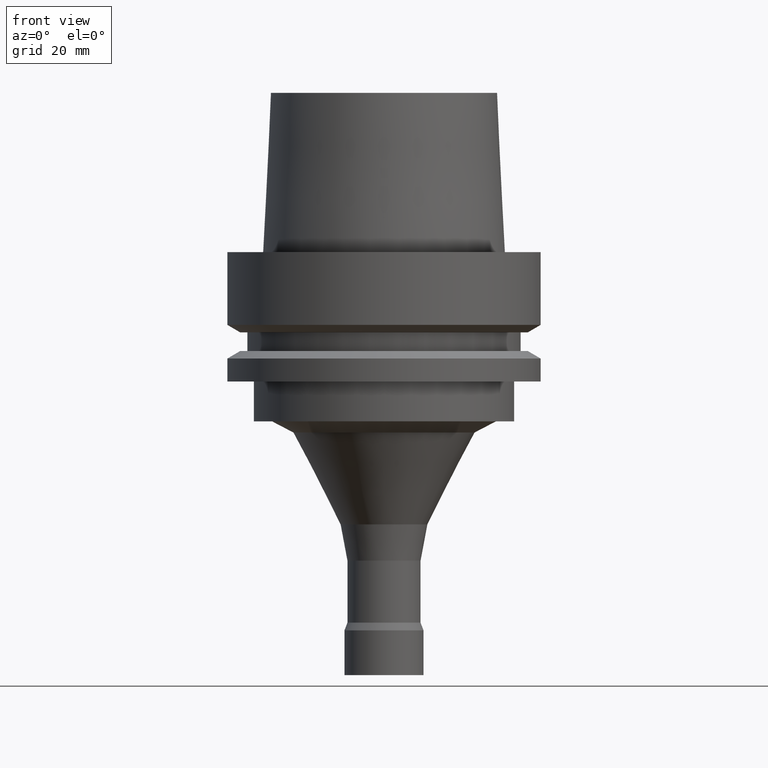
[diagram: clean part render]
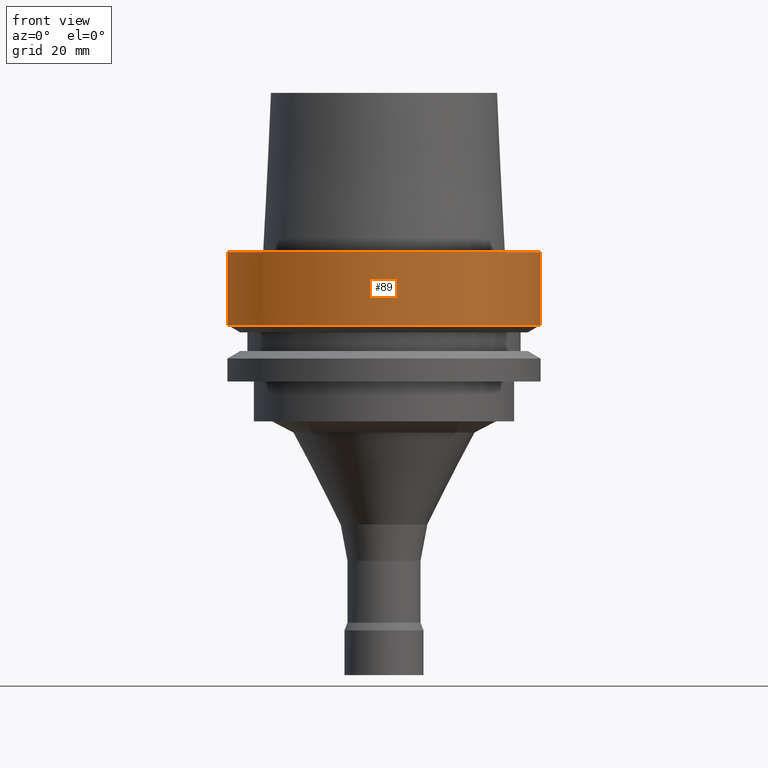
[diagram: same view with one face highlighted and labeled with its STEP entity id]
A machine part, front view. The second image highlights one B-rep face of the part: STEP entity #89.
In plain terms, the highlighted cylindrical surface (bore or boss wall) has radius 31.5 mm, axis along (-0, -0, 1).
Its self-contained STEP definition (entity closure, byte-faithful):
#89=ADVANCED_FACE('',(#137,#138),#139,.T.);
#137=FACE_BOUND('',#195,.T.);
#138=FACE_BOUND('',#196,.T.);
#139=CYLINDRICAL_SURFACE('',#197,31.5);
#195=EDGE_LOOP('',(#281));
#196=EDGE_LOOP('',(#282));
#197=AXIS2_PLACEMENT_3D('',#283,#284,#285);
#281=ORIENTED_EDGE('',*,*,#325,.F.);
#282=ORIENTED_EDGE('',*,*,#323,.T.);
#283=CARTESIAN_POINT('',(4.47684973986342E-016,8.95369947972684E-016,-7.311250465));
#284=DIRECTION('',(-6.12323399573677E-017,-1.22464679914735E-016,1.0));
#285=DIRECTION('',(-1.23259516440783E-032,1.0,1.22464679914735E-016));
#323=EDGE_CURVE('',#355,#355,#356,.T.);
#325=EDGE_CURVE('',#359,#359,#360,.T.);
#355=VERTEX_POINT('',#393);
#356=CIRCLE('',#394,31.5);
#359=VERTEX_POINT('',#397);
#360=CIRCLE('',#398,31.5);
#393=CARTESIAN_POINT('',(-3.8214424279273E-031,31.5,3.75763741731416E-015));
#394=AXIS2_PLACEMENT_3D('',#444,#445,#446);
#397=CARTESIAN_POINT('',(8.95369947972684E-016,31.5,-14.62250093));
#398=AXIS2_PLACEMENT_3D('',#450,#451,#452);
#444=CARTESIAN_POINT('',(0.0,0.0,0.0));
#445=DIRECTION('',(6.12323399573677E-017,1.22464679914735E-016,-1.0));
#446=DIRECTION('',(-1.23259516440783E-032,1.0,1.22464679914735E-016));
#450=CARTESIAN_POINT('',(8.95369947972685E-016,1.79073989594537E-015,-14.62250093));
#451=DIRECTION('',(6.12323399573677E-017,1.22464679914735E-016,-1.0));
#452=DIRECTION('',(-1.23259516440783E-032,1.0,1.22464679914735E-016));